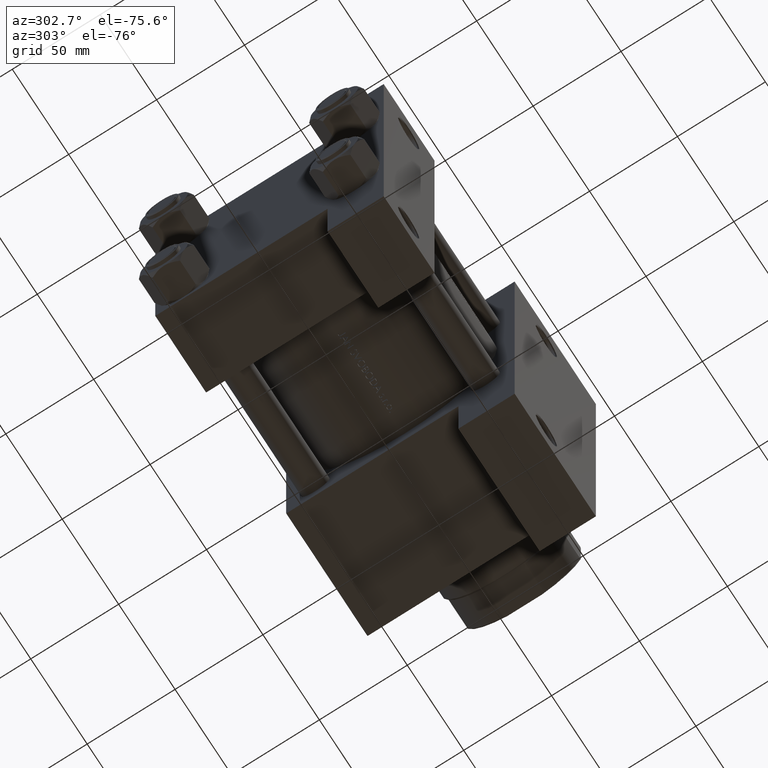
[diagram: clean part render]
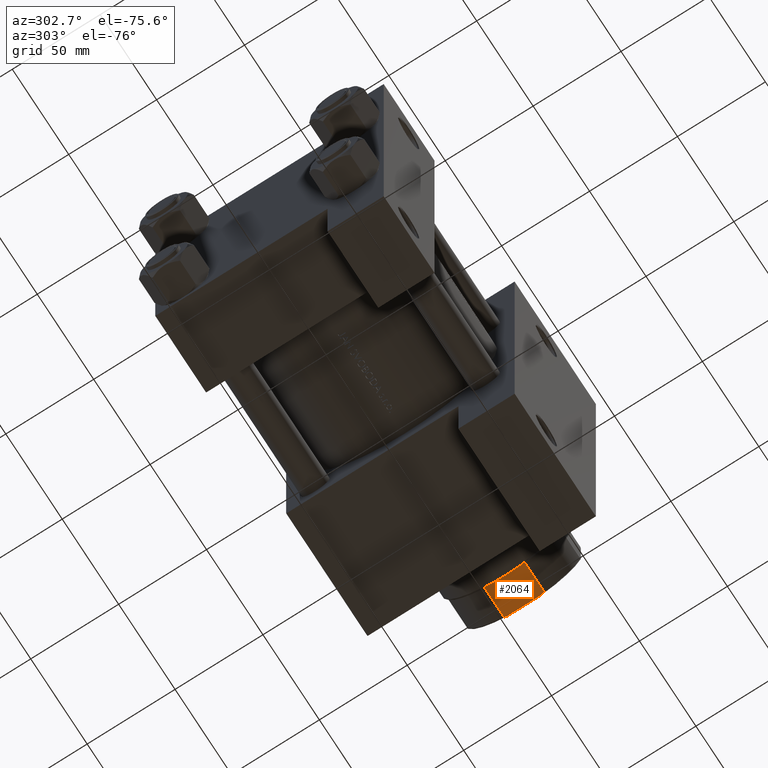
[diagram: same view with one face highlighted and labeled with its STEP entity id]
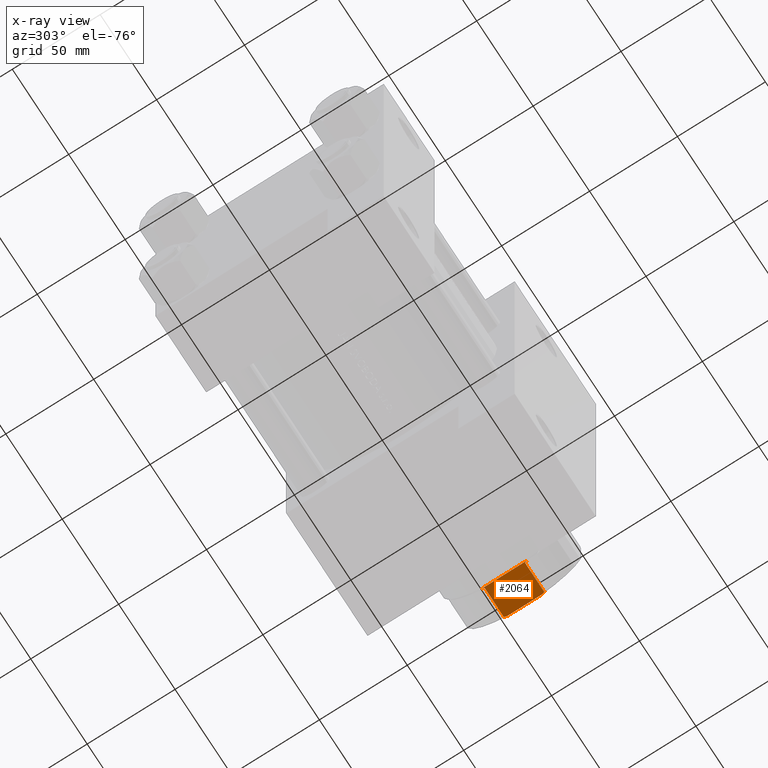
[diagram: x-ray of the same camera — body ghosted, the highlighted face saturated]
A machine part, auxiliary view. The second image highlights one B-rep face of the part: STEP entity #2064.
The next image is the same camera in x-ray: the body ghosted, the highlighted face saturated — about 0% of this face is hidden behind the body in this view.
In plain terms, the highlighted planar face has unit normal (0, -0, 1).
Its self-contained STEP definition (entity closure, byte-faithful):
#382 = CARTESIAN_POINT ( 'NONE',  ( -32.00000000000000711, 32.00000000000000000, 178.0000000000000000 ) ) ;
#1107 = DIRECTION ( 'NONE',  ( 0.000000000000000000, -1.000000000000000000, 0.000000000000000000 ) ) ;
#1213 = ORIENTED_EDGE ( 'NONE', *, *, #34894, .T. ) ;
#1765 = EDGE_CURVE ( 'NONE', #8233, #31914, #28969, .T. ) ;
#2064 = ADVANCED_FACE ( 'NONE', ( #24951 ), #21298, .F. ) ;
#2543 = CARTESIAN_POINT ( 'NONE',  ( 9.912113800799746244, 32.00000000000000000, 178.0000000000000000 ) ) ;
#2899 = CARTESIAN_POINT ( 'NONE',  ( -11.48912529307606079, 32.00000000000000000, 160.5000000000000000 ) ) ;
#3009 = CARTESIAN_POINT ( 'NONE',  ( 11.48912529307606434, 32.00000000000000000, 177.5000000000000568 ) ) ;
#3096 = EDGE_CURVE ( 'NONE', #31914, #22513, #26621, .T. ) ;
#6128 = CARTESIAN_POINT ( 'NONE',  ( -11.48912529307606256, 32.00000000000000000, 177.5000000000000568 ) ) ;
#6194 = CARTESIAN_POINT ( 'NONE',  ( -32.00000000000000711, 32.00000000000000000, 160.0000000000000000 ) ) ;
#6304 = CARTESIAN_POINT ( 'NONE',  ( 9.912113800799746244, 32.00000000000000000, 178.0000000000000000 ) ) ;
#6556 = EDGE_CURVE ( 'NONE', #44172, #8233, #43872, .T. ) ;
#7767 = CARTESIAN_POINT ( 'NONE',  ( 12.42943788034662056, 32.00000000000000000, 160.1735464250987491 ) ) ;
#8233 = VERTEX_POINT ( 'NONE', #19651 ) ;
#9281 = CARTESIAN_POINT ( 'NONE',  ( -10.44101023457687738, 32.00000000000000000, 177.8435080107332169 ) ) ;
#9605 = CARTESIAN_POINT ( 'NONE',  ( 12.89379695822762883, 32.00000000000000000, 160.0000000000000000 ) ) ;
#10554 = DIRECTION ( 'NONE',  ( -1.000000000000000000, -0.000000000000000000, -0.000000000000000000 ) ) ;
#11215 = EDGE_CURVE ( 'NONE', #35624, #44172, #15635, .T. ) ;
#11406 = CARTESIAN_POINT ( 'NONE',  ( 11.96085035339789648, 32.00000000000000000, 160.3405968140611435 ) ) ;
#12908 = LINE ( 'NONE', #34827, #29807 ) ;
#13226 = EDGE_CURVE ( 'NONE', #35624, #20684, #12908, .T. ) ;
#13404 = CARTESIAN_POINT ( 'NONE',  ( -10.96659503312093698, 32.00000000000000000, 177.6765710478250071 ) ) ;
#14264 = CARTESIAN_POINT ( 'NONE',  ( -32.00000000000000711, 32.00000000000000000, 178.0000000000000000 ) ) ;
#14304 = CARTESIAN_POINT ( 'NONE',  ( -11.95999793109654341, 32.00000000000000000, 160.3408848607265043 ) ) ;
#14829 = AXIS2_PLACEMENT_3D ( 'NONE', #382, #1107, #38058 ) ;
#15053 = CARTESIAN_POINT ( 'NONE',  ( 11.48912529307606434, 32.00000000000000000, 160.5000000000000000 ) ) ;
#15635 = B_SPLINE_CURVE_WITH_KNOTS ( 'NONE', 3,
 ( #15053, #11406, #7767, #30125 ),
 .UNSPECIFIED., .F., .F.,
 ( 4, 4 ),
 ( 0.1314599852491797061, 0.1329077376904516106 ),
 .UNSPECIFIED. ) ;
#16938 = CARTESIAN_POINT ( 'NONE',  ( 11.48912529307606434, 32.00000000000000000, 160.5000000000000000 ) ) ;
#17682 = VERTEX_POINT ( 'NONE', #31009 ) ;
#17825 = CARTESIAN_POINT ( 'NONE',  ( 10.96659503312093165, 32.00000000000000000, 177.6765710478250071 ) ) ;
#19195 = CARTESIAN_POINT ( 'NONE',  ( 11.48912529307606434, 32.00000000000000000, 177.5000000000000568 ) ) ;
#19651 = CARTESIAN_POINT ( 'NONE',  ( -12.89379695822764127, 32.00000000000000000, 160.0000000000000000 ) ) ;
#20251 = ORIENTED_EDGE ( 'NONE', *, *, #11215, .T. ) ;
#20684 = VERTEX_POINT ( 'NONE', #19195 ) ;
#21298 = PLANE ( 'NONE',  #14829 ) ;
#21477 = CARTESIAN_POINT ( 'NONE',  ( 10.44101023457686317, 32.00000000000000000, 177.8435080107332169 ) ) ;
#22058 = DIRECTION ( 'NONE',  ( -1.000000000000000000, -0.000000000000000000, -0.000000000000000000 ) ) ;
#22513 = VERTEX_POINT ( 'NONE', #6128 ) ;
#22629 = VECTOR ( 'NONE', #10554, 1000.000000000000000 ) ;
#23920 = ORIENTED_EDGE ( 'NONE', *, *, #3096, .T. ) ;
#24173 = EDGE_CURVE ( 'NONE', #35465, #17682, #36661, .T. ) ;
#24951 = FACE_OUTER_BOUND ( 'NONE', #45384, .T. ) ;
#26381 = CARTESIAN_POINT ( 'NONE',  ( -11.48912529307606256, 32.00000000000000000, -0.001000000000001000089 ) ) ;
#26621 = LINE ( 'NONE', #26381, #38089 ) ;
#27751 = DIRECTION ( 'NONE',  ( -0.000000000000000000, -0.000000000000000000, 1.000000000000000000 ) ) ;
#28969 = B_SPLINE_CURVE_WITH_KNOTS ( 'NONE', 3,
 ( #40094, #36453, #14304, #2899 ),
 .UNSPECIFIED., .F., .F.,
 ( 4, 4 ),
 ( 0.1673897512801410525, 0.1688804722548878645 ),
 .UNSPECIFIED. ) ;
#29807 = VECTOR ( 'NONE', #27751, 1000.000000000000000 ) ;
#29934 = B_SPLINE_CURVE_WITH_KNOTS ( 'NONE', 3,
 ( #2543, #21477, #17825, #3009 ),
 .UNSPECIFIED., .F., .F.,
 ( 4, 4 ),
 ( 0.000000000000000000, 0.001654377601024483715 ),
 .UNSPECIFIED. ) ;
#30125 = CARTESIAN_POINT ( 'NONE',  ( 12.89379695822762883, 32.00000000000000000, 160.0000000000000000 ) ) ;
#30614 = ORIENTED_EDGE ( 'NONE', *, *, #24173, .F. ) ;
#31009 = CARTESIAN_POINT ( 'NONE',  ( -9.912113800799769336, 32.00000000000000000, 178.0000000000000000 ) ) ;
#31914 = VERTEX_POINT ( 'NONE', #33329 ) ;
#33329 = CARTESIAN_POINT ( 'NONE',  ( -11.48912529307606079, 32.00000000000000000, 160.5000000000000000 ) ) ;
#33642 = EDGE_CURVE ( 'NONE', #35465, #20684, #29934, .T. ) ;
#33790 = ORIENTED_EDGE ( 'NONE', *, *, #1765, .T. ) ;
#34827 = CARTESIAN_POINT ( 'NONE',  ( 11.48912529307606434, 32.00000000000000000, -0.001000000000001000089 ) ) ;
#34894 = EDGE_CURVE ( 'NONE', #22513, #17682, #35146, .T. ) ;
#35146 = B_SPLINE_CURVE_WITH_KNOTS ( 'NONE', 3,
 ( #46003, #13404, #9281, #46245 ),
 .UNSPECIFIED., .F., .F.,
 ( 4, 4 ),
 ( 0.000000000000000000, 0.001654377601024460513 ),
 .UNSPECIFIED. ) ;
#35465 = VERTEX_POINT ( 'NONE', #6304 ) ;
#35624 = VERTEX_POINT ( 'NONE', #16938 ) ;
#36443 = ORIENTED_EDGE ( 'NONE', *, *, #6556, .T. ) ;
#36453 = CARTESIAN_POINT ( 'NONE',  ( -12.42815443776488316, 32.00000000000000000, 160.1740260902598152 ) ) ;
#36661 = LINE ( 'NONE', #14264, #40920 ) ;
#38058 = DIRECTION ( 'NONE',  ( 0.000000000000000000, -0.000000000000000000, -1.000000000000000000 ) ) ;
#38089 = VECTOR ( 'NONE', #41221, 1000.000000000000000 ) ;
#40094 = CARTESIAN_POINT ( 'NONE',  ( -12.89379695822764127, 32.00000000000000000, 160.0000000000000000 ) ) ;
#40920 = VECTOR ( 'NONE', #22058, 1000.000000000000000 ) ;
#41221 = DIRECTION ( 'NONE',  ( -0.000000000000000000, -0.000000000000000000, 1.000000000000000000 ) ) ;
#43168 = ORIENTED_EDGE ( 'NONE', *, *, #33642, .T. ) ;
#43872 = LINE ( 'NONE', #6194, #22629 ) ;
#44172 = VERTEX_POINT ( 'NONE', #9605 ) ;
#45144 = ORIENTED_EDGE ( 'NONE', *, *, #13226, .F. ) ;
#45384 = EDGE_LOOP ( 'NONE', ( #30614, #43168, #45144, #20251, #36443, #33790, #23920, #1213 ) ) ;
#46003 = CARTESIAN_POINT ( 'NONE',  ( -11.48912529307606256, 32.00000000000000000, 177.5000000000000568 ) ) ;
#46245 = CARTESIAN_POINT ( 'NONE',  ( -9.912113800799769336, 32.00000000000000000, 178.0000000000000000 ) ) ;